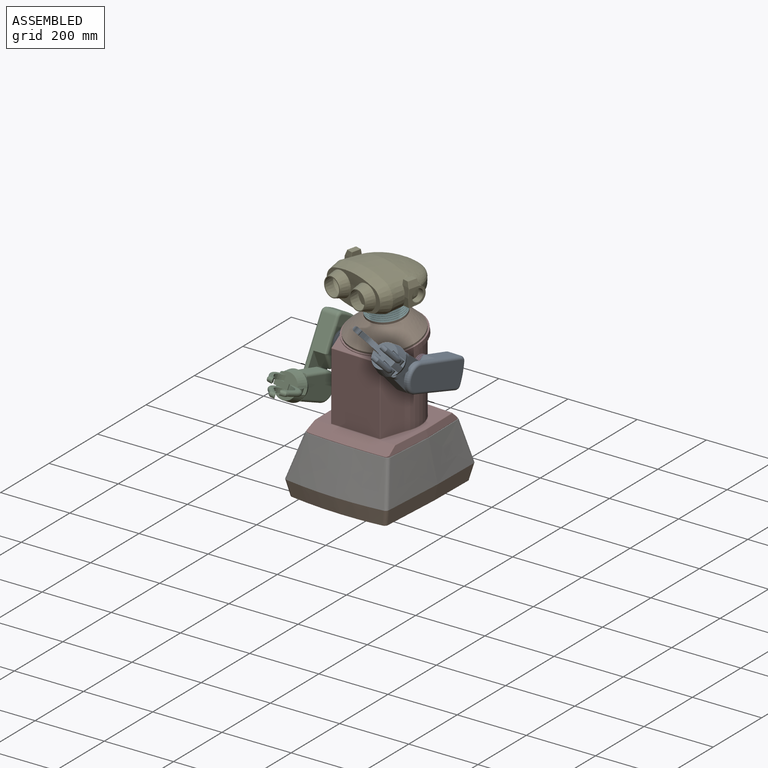
[diagram: assembled view]
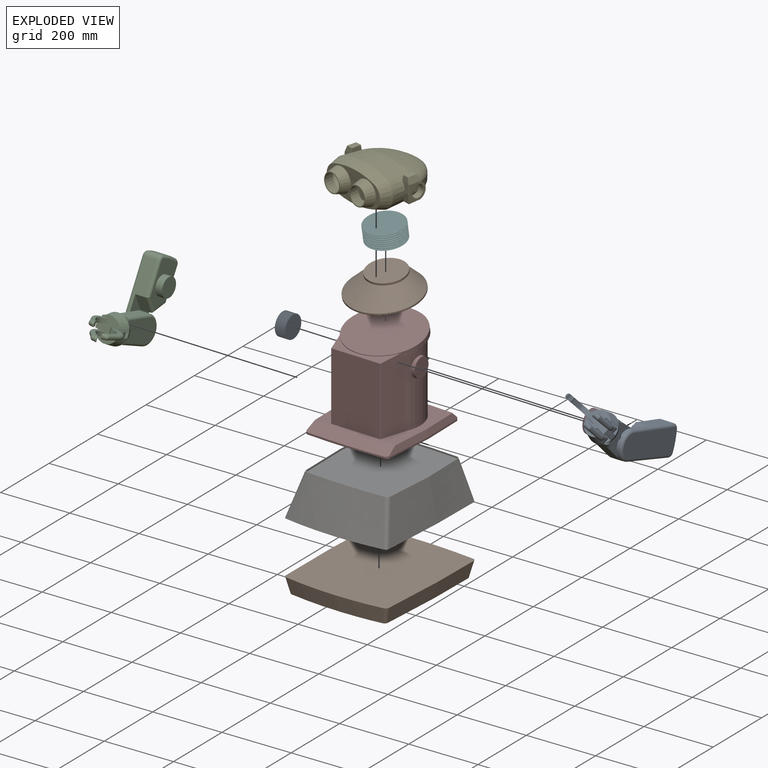
[diagram: exploded view]
GUIDED TOUR — MATED ASSEMBLY WITH SUBASSEMBLIES (Onshape document 103a660172ac3e37fdf2f8b3, AutoMate assembly 103a660172ac3e37fdf2f8b3_768f0f45ffd59bf04294a871_b3bad42c81f9b08c0eccabce_default)

This assembly has 21 component occurrences arranged in 10 top-level units: 7 individual components plus 3 subassemblies (S0, S1, S2). The tour has two levels: first the top level, where each subassembly is treated as one rigid unit; then each subassembly is toured internally in its own section (nesting deeper than one subassembly level is flattened into its subassembly's section).

Components are labeled P0..P20 across the whole record; subassembly units are labeled S0..S2. A mate is a constraint between two units; its type names the relative motion it leaves free:
  FASTENED — locks the two components together rigidly (no relative motion),
  REVOLUTE — leaves rotation about the listed axis free (a hinge).
Axis/direction vectors are unit vectors and 'through' points are millimeter coordinates, both in the assembly's world frame.

TOP-LEVEL MATES (between units; each subassembly's internal mates are listed in its own section)
  1. REVOLUTE "Revolute 1": S0 <-> P13, axis (-0.999, 0.032, 0.000) through (158.72, -116.70, 211.18) mm
  2. FASTENED "Fastened 4": P2 <-> P8, direction (-0.006, -0.174, 0.985) through (48.92, -105.88, 328.69) mm
  3. FASTENED "Fastened 5": P14 <-> S1, direction (-0.999, 0.032, 0.000) through (-81.15, -108.91, 211.18) mm
  4. FASTENED "Fastened 6": P4 <-> S0, direction (0.999, -0.032, 0.000) through (178.71, -117.35, 211.18) mm
  5. FASTENED "Fastened 2": P10 <-> P13, direction (0.000, 0.000, 1.000) through (48.46, -123.05, 29.18) mm
  6. FASTENED "Fastened 3": P13 <-> P2, direction (-0.006, -0.174, 0.985) through (48.73, -111.80, 275.86) mm
  7. REVOLUTE "Revolute 2": P13 <-> S1, axis (-0.999, 0.032, 0.000) through (-61.16, -109.56, 211.18) mm
  8. REVOLUTE "Revolute 3": P8 <-> S2, axis (-0.006, -0.174, 0.985) through (48.68, -113.17, 370.05) mm
  9. FASTENED "Fastened 1": P18 <-> P10, direction (0.000, 0.000, 1.000) through (48.12, -133.45, -80.82) mm

TOP-LEVEL ASSEMBLY ORDER
  1. P13 — the base component [order heuristic]
  2. S1 — core [order heuristic]
  3. S0 — core [order heuristic]
  4. P4 — core [order heuristic]
  5. P14 — core [order heuristic]
  6. P2 [order verified]
  7. P8 [order verified]
  8. S2 [order verified]
  9. P10 [order verified]
  10. P18 [order verified]
Order-tag legend:
  [order verified] — this step's position reverses a verified removal order: the component was checked to insert without passing through the ones already placed.
  [order heuristic] — the first 5 components form the assembly's core: parts whose collision-free extraction could not be verified, listed in mate-graph order.

Of the 21 component occurrences, 8 carry the full construction recipe — the FeatureScript program that regenerates the part's solid from scratch; the rest are supplied as boundary geometry only. Each toured unit is shown spotlighted twice — assembled, then exploded with a leader line back to its socket (green = recipe-attached component, orange = geometry-only, blue = subassembly unit; the rest desaturated gray).
NOTE — document 2 of 3 of this assembly tour. The two overview renders and the header above are repeated from document 1; the component sections below continue where the previous document stopped.
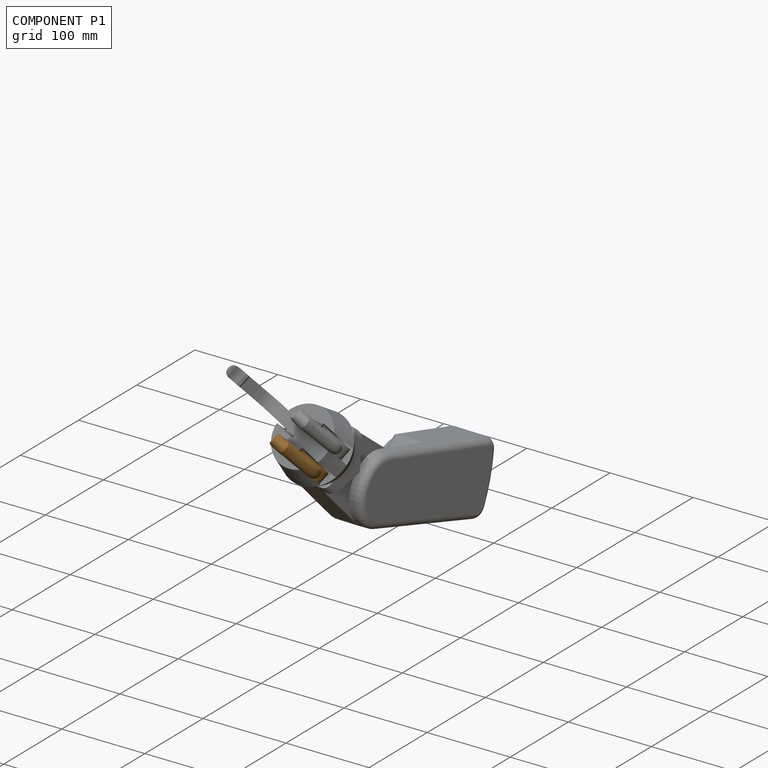
[diagram: component P1 — assembled]
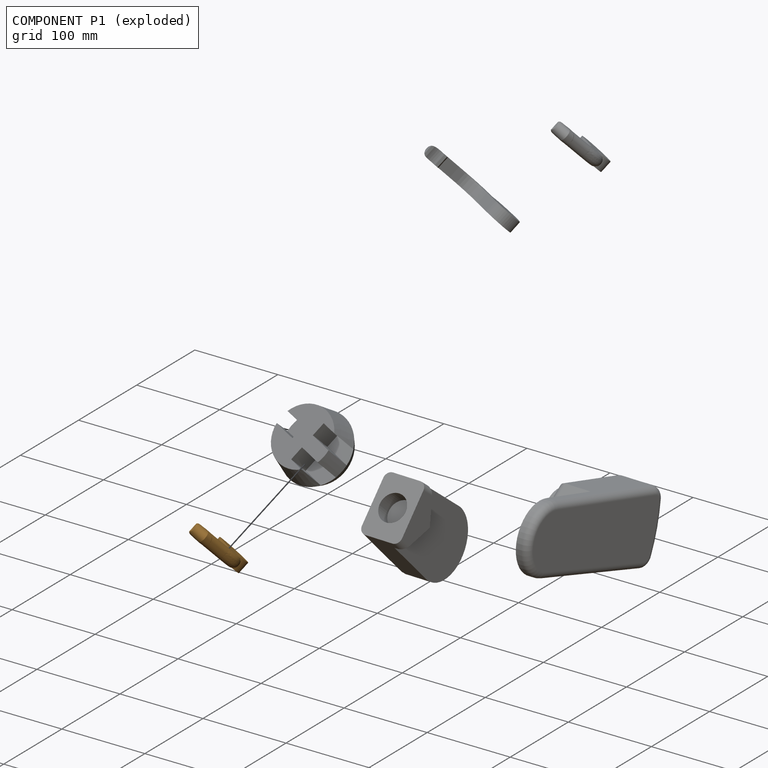
[diagram: component P1 — exploded]
COMPONENT P1 — geometry summary (no construction recipe available for this part):
  bounding box: 101.5 x 85.3 x 14.0 mm
  B-rep topology: 1 solid, 17 faces, 90 edges
  volume: 32064 mm^3 (26% of its bounding box)
  symmetry: mirror-symmetric across its z mid-plane
Held by: REVOLUTE mate "Revolute 2" to P12; REVOLUTE mate "Revolute 2" to P12.
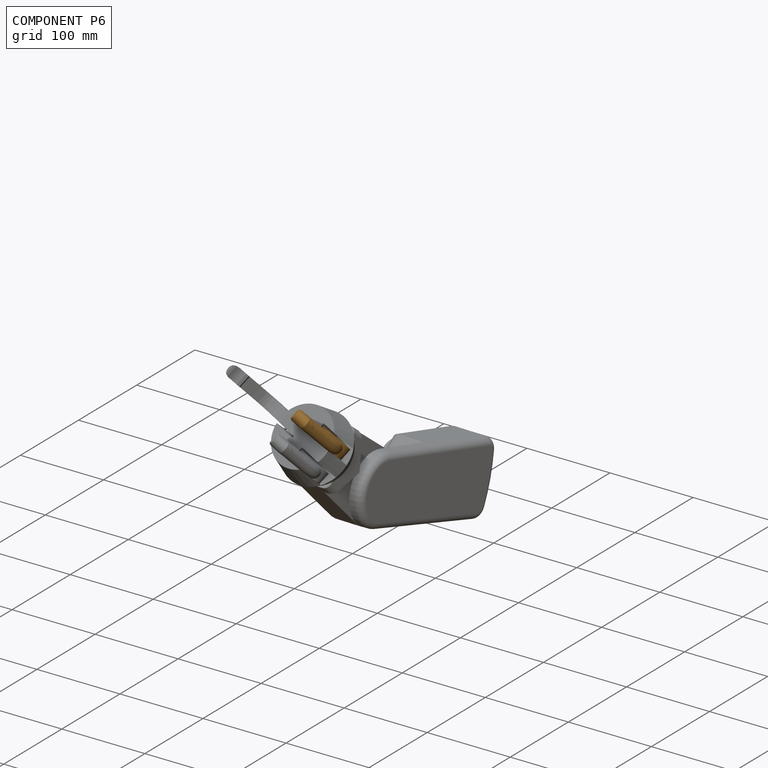
[diagram: component P6 — assembled]
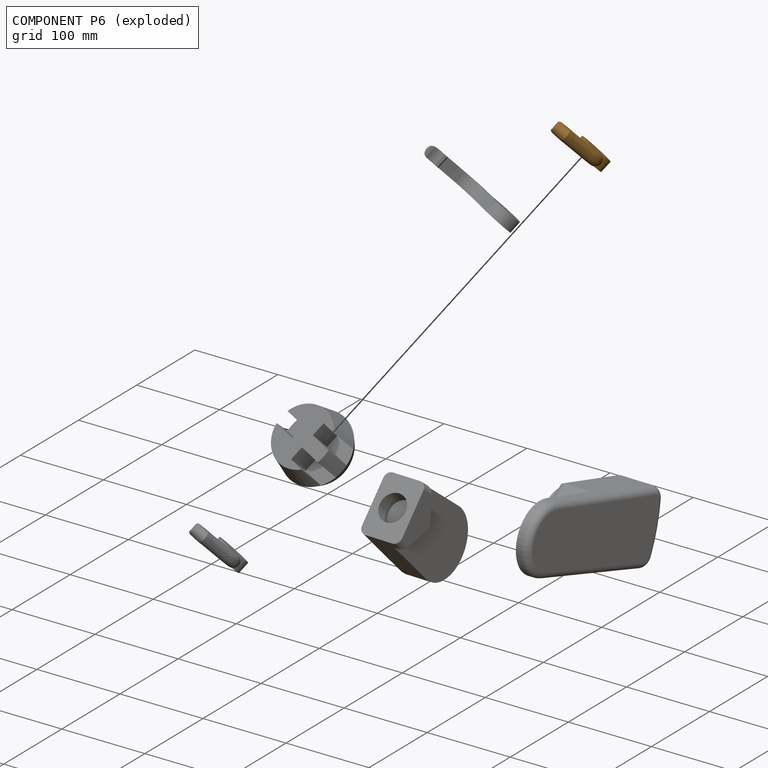
[diagram: component P6 — exploded]
COMPONENT P6 — geometry summary (no construction recipe available for this part):
  bounding box: 101.5 x 85.3 x 14.0 mm
  B-rep topology: 1 solid, 17 faces, 90 edges
  volume: 32064 mm^3 (26% of its bounding box)
  symmetry: mirror-symmetric across its z mid-plane
Held by: REVOLUTE mate "Revolute 3" to P12; REVOLUTE mate "Revolute 3" to P12.
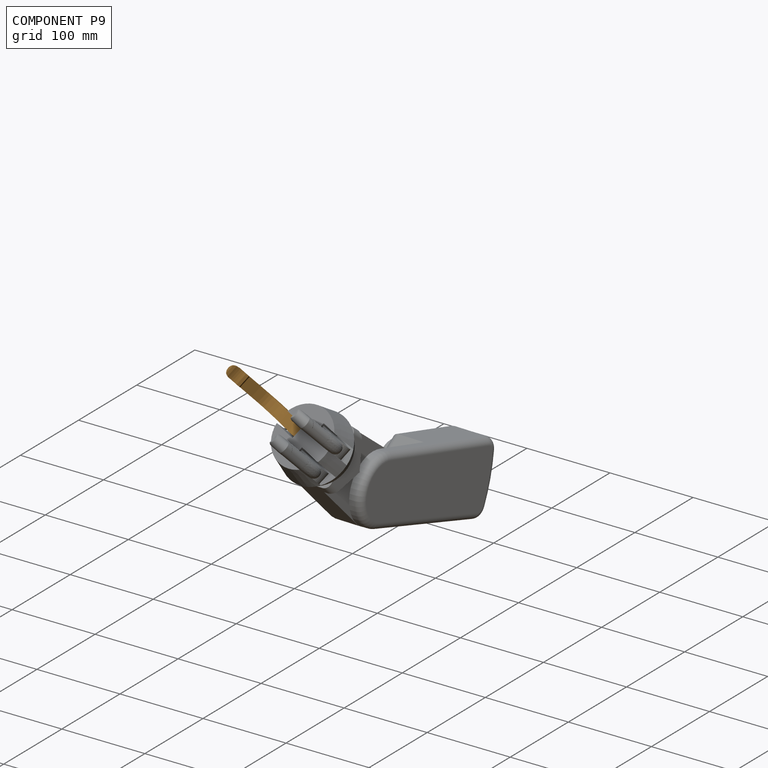
[diagram: component P9 — assembled]
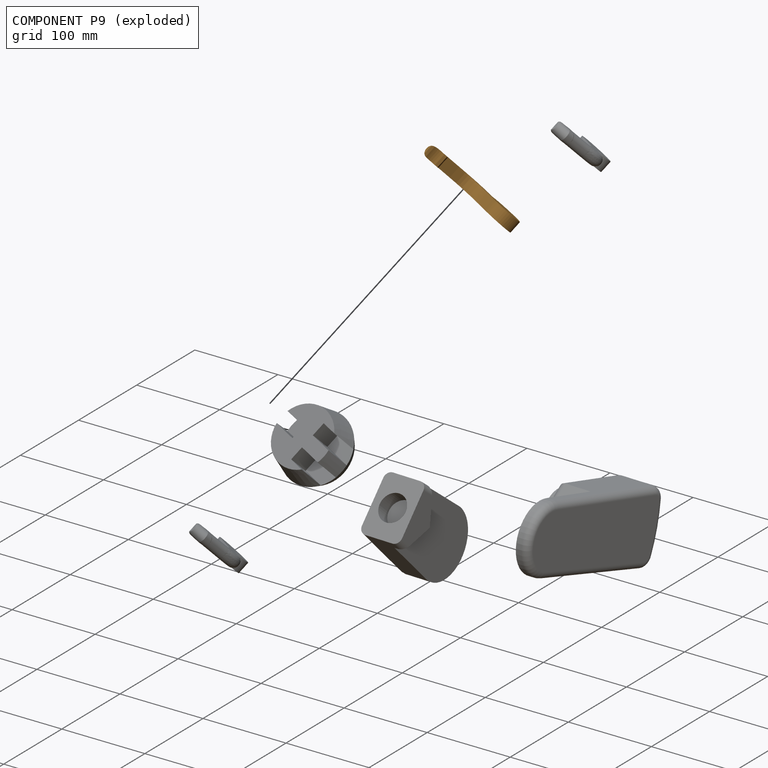
[diagram: component P9 — exploded]
COMPONENT P9 — geometry summary (no construction recipe available for this part):
  bounding box: 101.5 x 85.3 x 14.0 mm
  B-rep topology: 1 solid, 17 faces, 90 edges
  volume: 32064 mm^3 (26% of its bounding box)
  symmetry: mirror-symmetric across its z mid-plane
Held by: REVOLUTE mate "Revolute 1" to P12; REVOLUTE mate "Revolute 1" to P12.
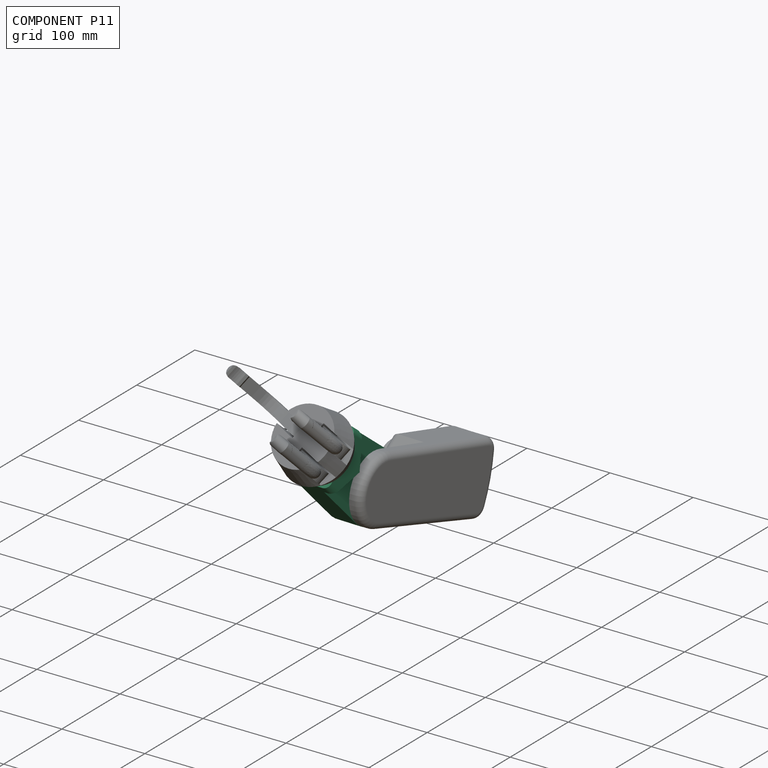
[diagram: component P11 — assembled]
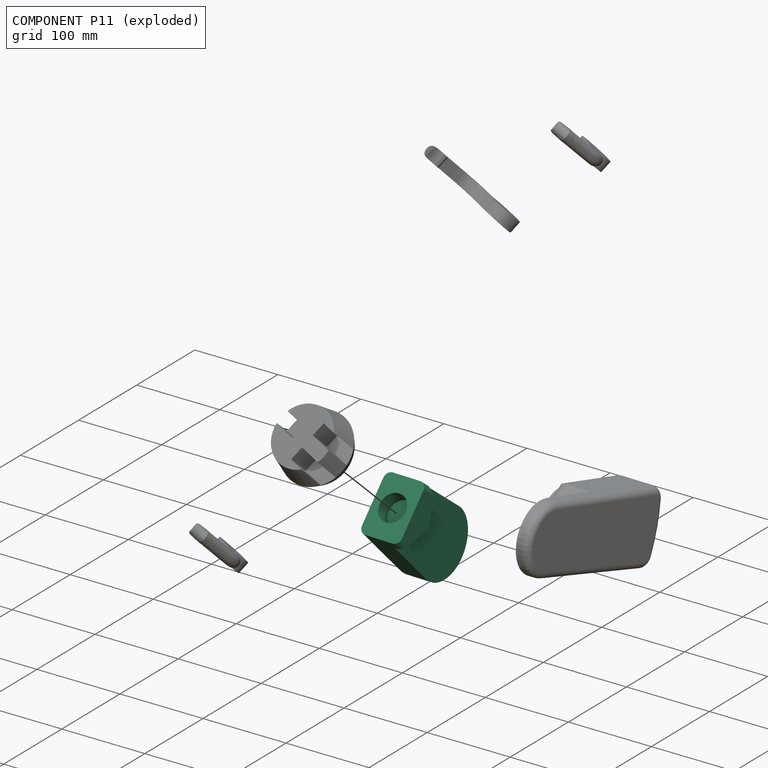
[diagram: component P11 — exploded]
COMPONENT P11 — recipe-attached (CADFS 00932347, mesh-verified: the recipe's output STEP matches this component's geometry to below the mesh-comparison resolution (tessellation chordal tolerance ~0.241 mm)).
Held by: REVOLUTE mate "Revolute 3" to P12; REVOLUTE mate "Revolute 1" to P0; REVOLUTE mate "Revolute 3" to P12; REVOLUTE mate "Revolute 1" to P0.
Construction recipe (FeatureScript — the CAD program that rebuilds this solid; sketch coordinates are in the units given by the * unit suffixes, e.g. mm):

FeatureScript 1511;
import(path : "onshape/std/geometry.fs", version : "1511.0");
import(path : "onshape/std/common.fs", version : "1511.0");
const mm = millimeter;
const VERTEX = EntityType.VERTEX;
const EDGE = EntityType.EDGE;
const FACE = EntityType.FACE;
const BODY = EntityType.BODY;
function v(x, y){return vector(x, y);}
function OD(order){return orderDisambiguation(order);}
function OSD(set){return originalSetDisambiguation(set);}
function TD(topology){return topologyDisambiguation(topology);}
function TDD(query){return trueDependencyDisambiguation(query);}
function sQuery(a, b, c) {return sketchEntityQuery(a, b, c);}

annotation { "Feature Type Name" : "Feature", "Feature Type Description" : "" }
export const myFeature = defineFeature(function(context is Context, id is Id, definition is map)
    precondition{}
    {
        {
            var Q0;
            Q0=qCreatedBy(makeId("Top.planeOp"),FACE);
            var sketch = newSketch(context, id + "F0", { "sketchPlane" : qUnion([Q0])});
            skArc(sketch, "E0", {"start": v(0, 40.25) * mm, "mid": v(-40.25, 0) * mm, "end": v(0, -40.25) * mm});
            skLineSegment(sketch, "E1", {"start": v(0, 40.25) * mm, "end": v(89.5, 34.25) * mm});
            skLineSegment(sketch, "E2", {"start": v(89.5, 34.25) * mm, "end": v(89.5, -34.25) * mm});
            skLineSegment(sketch, "E3", {"start": v(89.5, -34.25) * mm, "end": v(0, -40.25) * mm});
            skPoint(sketch, "E4", {"position": v(89.5, 0) * mm});
            skSolve(sketch);
        }
        {
            var Q0;
            Q0=makeQuery(id+"F0.imprint","IMPRINT",FACE,{"disambiguationData":[TD([[makeQuery(id+"F0.imprint","IMPRINT",EDGE,{"derivedFrom":sQuery(id+"F0.wireOp",EDGE,"E0")}),1.0]])]});
            extrude(context, id + "F1", {"entities" : qUnion([Q0]), "depth" : 49.5 * mm});
        }
        {
            var Q0;
            Q0=makeQuery(id+"F1.opExtrude","CAP_FACE",FACE,{"disambiguationData":[OSD([sQuery(id+"F0.wireOp",EDGE,"E0"),sQuery(id+"F0.wireOp",EDGE,"E1"),sQuery(id+"F0.wireOp",EDGE,"E2"),sQuery(id+"F0.wireOp",EDGE,"E3")])],"isStart":true});
            var sketch = newSketch(context, id + "F2", { "sketchPlane" : qUnion([Q0])});
            skLineSegment(sketch, "E5", {"start": v(76.87, 35.1) * mm, "end": v(52, 0) * mm});
            skLineSegment(sketch, "E6", {"start": v(52, 0) * mm, "end": v(76.87, -35.1) * mm});
            skLineSegment(sketch, "E7", {"start": v(76.87, -35.1) * mm, "end": v(-48.5, -56.11) * mm});
            skLineSegment(sketch, "E8", {"start": v(-48.5, -56.11) * mm, "end": v(-51.9, 53.54) * mm});
            skLineSegment(sketch, "E9", {"start": v(-51.9, 53.54) * mm, "end": v(76.87, 35.1) * mm});
            skSolve(sketch);
        }
        {
            var Q0;
            {var subQ1=sQuery(id+"F2.wireOp",EDGE,"E5");var subQ7=sQuery(id+"F2.wireOp",EDGE,"E7");Q0=qUnion([makeQuery(id+"F2.imprint","IMPRINT",FACE,{"disambiguationData":[TD([[makeQuery(id+"F2.imprint","IMPRINT",EDGE,{"derivedFrom":subQ7}),-1.0]])]}),makeQuery(id+"F2.imprint","IMPRINT",FACE,{"disambiguationData":[TD([[makeQuery(id+"F2.imprint","IMPRINT",EDGE,{"derivedFrom":subQ1}),-1.0]])]})]);}
            extrude(context, id + "F3", {"entities" : qUnion([Q0]), "operationType" : NewBodyOperationType.REMOVE, "oppositeDirection" : true, "depth" : 12 * mm});
        }
        {
            var Q0;
            Q0=makeQuery(id+"F1.opExtrude","CAP_EDGE",EDGE,{"disambiguationData":[OSD([sQuery(id+"F0.wireOp",EDGE,"E1")])],"isStart":false});
            var Q1;
            Q1=makeQuery(id+"F1.opExtrude","CAP_EDGE",EDGE,{"disambiguationData":[OSD([sQuery(id+"F0.wireOp",EDGE,"E0")])],"isStart":false});
            var Q2;
            Q2=makeQuery(id+"F1.opExtrude","CAP_EDGE",EDGE,{"disambiguationData":[OSD([sQuery(id+"F0.wireOp",EDGE,"E3")])],"isStart":false});
            var Q3;
            Q3=makeQuery(id+"F1.opExtrude","CAP_EDGE",EDGE,{"disambiguationData":[OSD([sQuery(id+"F0.wireOp",EDGE,"E1")])],"isStart":true});
            var Q4;
            Q4=makeQuery(id+"F1.opExtrude","CAP_EDGE",EDGE,{"disambiguationData":[OSD([sQuery(id+"F0.wireOp",EDGE,"E3")])],"isStart":true});
            fillet(context, id + "F4", {"entities" : qUnion([Q0, Q1, Q2, Q3, Q4]), "radius" : 8 * mm, "tangentPropagation" : true, "allowEdgeOverflow" : false});
        }
        {
            var Q0;
            Q0=makeQuery(id+"F1.opExtrude","SWEPT_FACE",FACE,{"disambiguationData":[OSD([sQuery(id+"F0.wireOp",EDGE,"E2")])]});
            var sketch = newSketch(context, id + "F5", { "sketchPlane" : qUnion([Q0])});
            skCircle(sketch, "E10", {"center": v(0, 24.75) * mm, "radius": 16 * mm});
            skPoint(sketch, "E11", {"position": v(-34.25, 24.75) * mm});
            skPoint(sketch, "E12", {"position": v(0, 49.5) * mm});
            skSolve(sketch);
        }
        {
            var Q0;
            Q0=makeQuery(id+"F5.imprint","IMPRINT",FACE,{"disambiguationData":[TD([[makeQuery(id+"F5.imprint","IMPRINT",EDGE,{"derivedFrom":sQuery(id+"F5.wireOp",EDGE,"E10")}),1.0]])]});
            extrude(context, id + "F6", {"entities" : qUnion([Q0]), "operationType" : NewBodyOperationType.REMOVE, "oppositeDirection" : true, "depth" : 20 * mm});
        }
    });
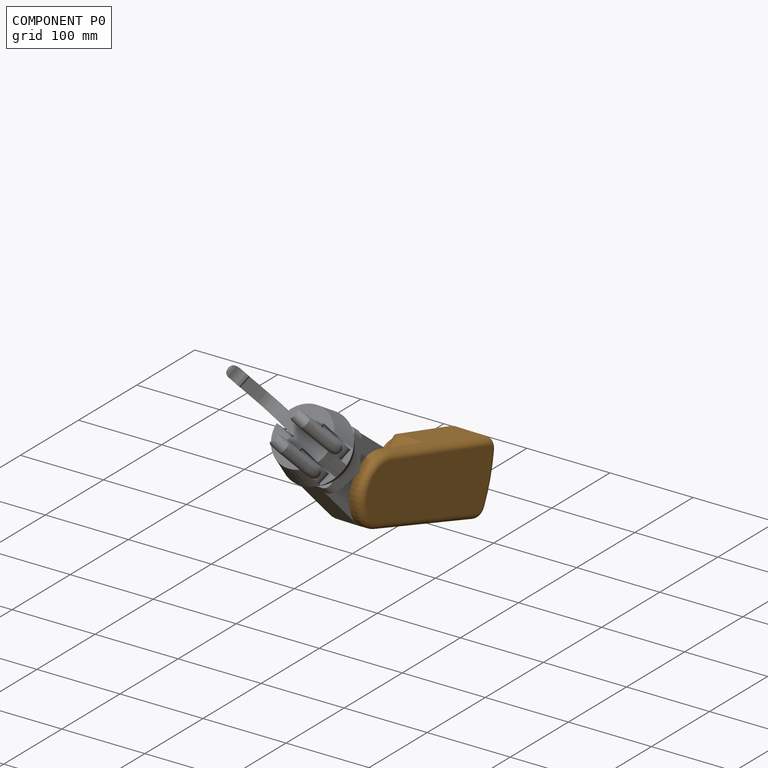
[diagram: component P0 — assembled]
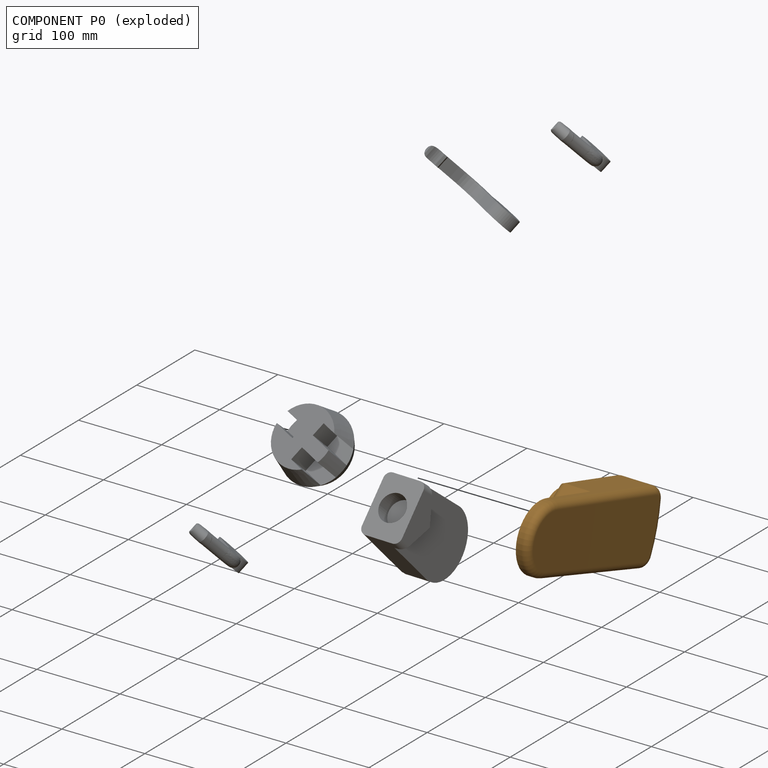
[diagram: component P0 — exploded]
COMPONENT P0 — geometry summary (no construction recipe available for this part):
  bounding box: 230.7 x 86.6 x 74.0 mm
  B-rep topology: 1 solid, 28 faces, 118 edges
  volume: 701508 mm^3 (47% of its bounding box)
  symmetry: mirror-symmetric across its y mid-plane
Held by: REVOLUTE mate "Revolute 1" to P11; REVOLUTE mate "Revolute 1" to P11.
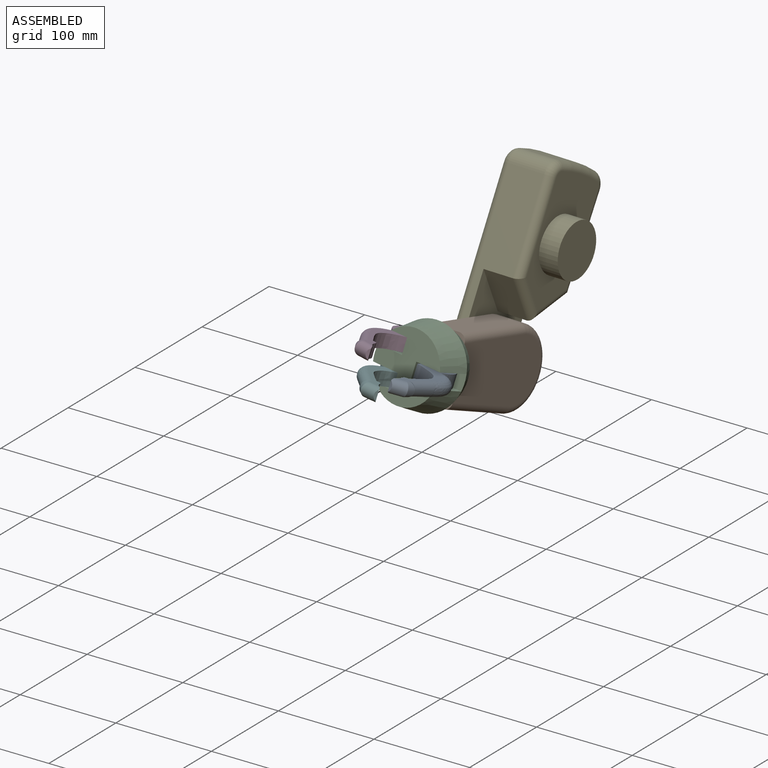
[diagram: subassembly S1 — assembled view]
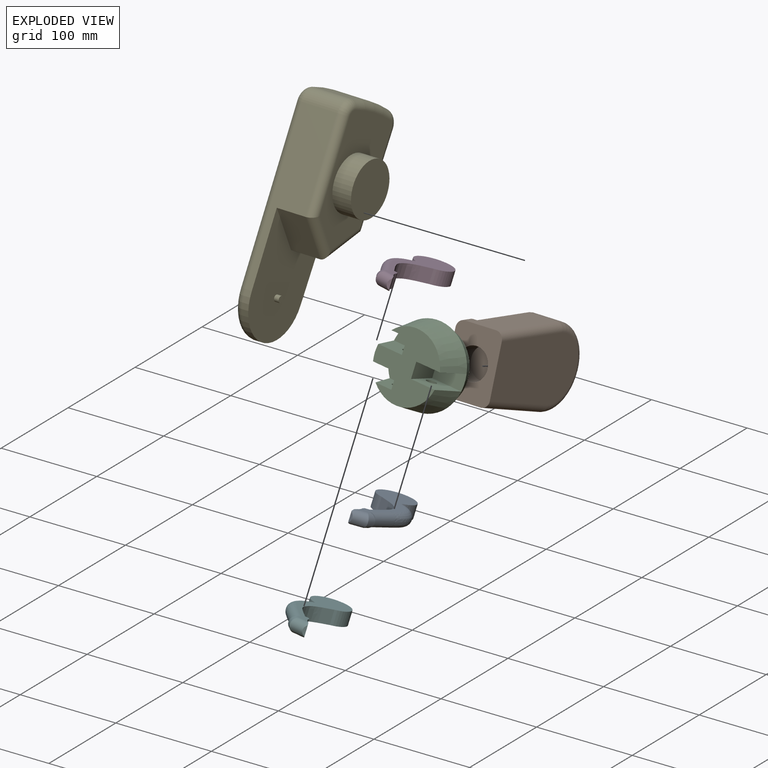
[diagram: subassembly S1 — exploded view]
SUBASSEMBLY S1 TOUR — 6 components, shown here in isolation at its own camera.

INTERNAL MATES
  1. REVOLUTE "Revolute 3": P5 <-> P16, axis (-0.031, -0.945, 0.325) through (-111.94, -248.15, 141.84) mm
  2. REVOLUTE "Revolute 1": P3 <-> P16, axis (-0.121, -0.319, -0.940) through (-97.77, -274.49, 140.43) mm
  3. REVOLUTE "Revolute 2": P17 <-> P16, axis (0.121, 0.319, 0.940) through (-125.63, -262.09, 173.87) mm
  4. REVOLUTE "Revolute 3": P20 <-> P16, axis (0.121, 0.319, 0.940) through (-129.52, -272.30, 143.79) mm
  5. REVOLUTE "Revolute 1": P5 <-> P19, axis (-0.999, 0.032, 0.000) through (-121.93, -163.14, 112.76) mm
  6. REVOLUTE "Revolute 3": P20 <-> P16, axis (0.121, 0.319, 0.940) through (-129.52, -272.30, 143.79) mm
  7. REVOLUTE "Revolute 3": P5 <-> P16, axis (-0.031, -0.945, 0.325) through (-111.94, -248.15, 141.84) mm
  8. REVOLUTE "Revolute 2": P17 <-> P16, axis (0.121, 0.319, 0.940) through (-125.63, -262.09, 173.87) mm
  9. REVOLUTE "Revolute 1": P5 <-> P19, axis (-0.999, 0.032, 0.000) through (-121.93, -163.14, 112.76) mm
  10. REVOLUTE "Revolute 1": P3 <-> P16, axis (-0.121, -0.319, -0.940) through (-97.77, -274.49, 140.43) mm

ASSEMBLY ORDER (within the subassembly)
  1. P16 — the base component [order heuristic]
  2. P3 — core [order heuristic]
  3. P20 — core [order heuristic]
  4. P17 — core [order heuristic]
  5. P5 [order verified]
  6. P19 [order verified]
(P19 verified with a relaxed clearance tolerance: the source model stores slight part interference there.)
Order-tag legend:
  [order verified] — this step's position reverses a verified removal order: the component was checked to insert without passing through the ones already placed.
  [order heuristic] — the first 4 components form the assembly's core: parts whose collision-free extraction could not be verified, listed in mate-graph order.
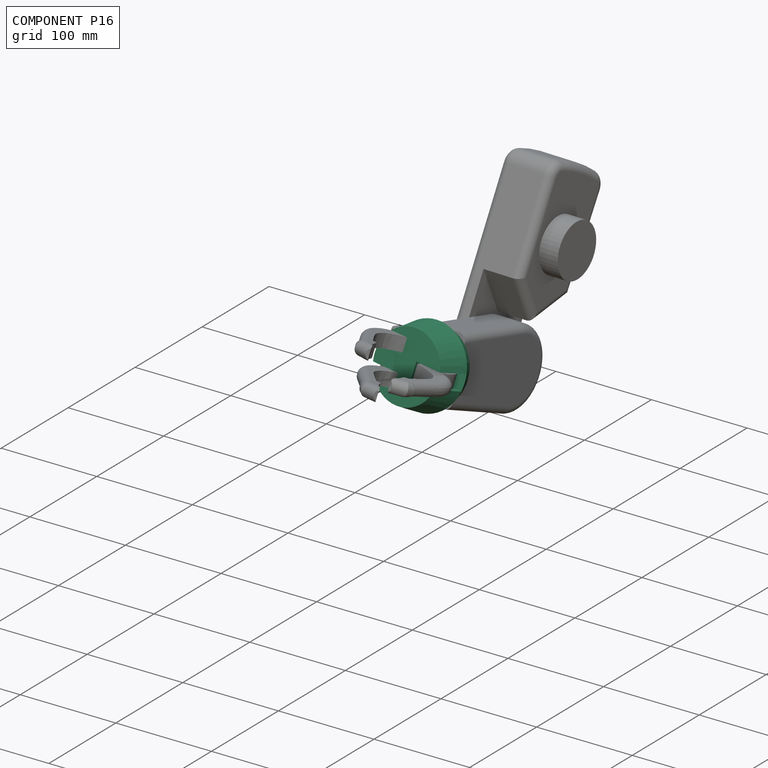
[diagram: component P16 — assembled]
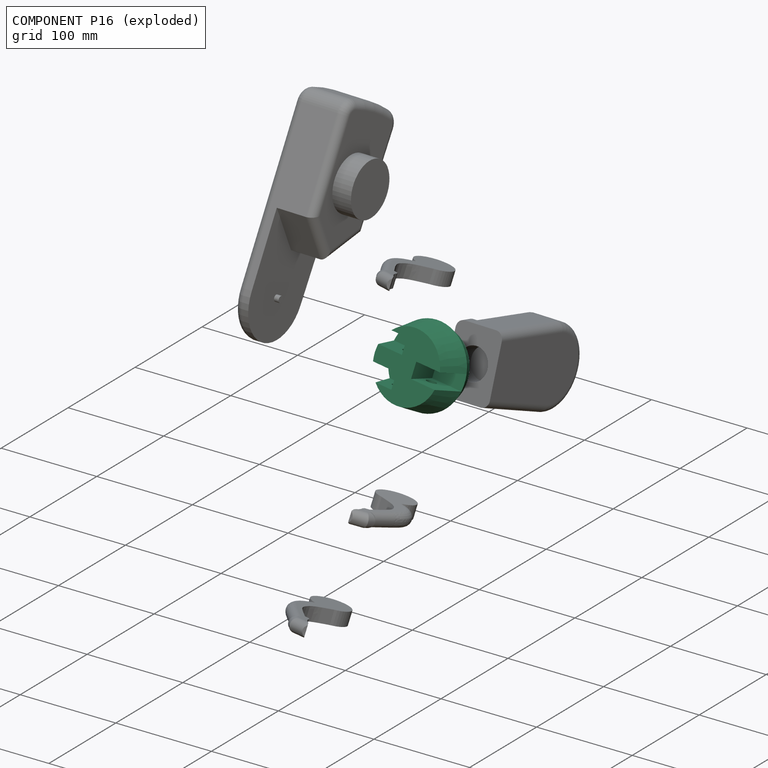
[diagram: component P16 — exploded]
COMPONENT P16 — recipe-attached (CADFS 00590286, mesh-verified: the recipe's output STEP matches this component's geometry to below the mesh-comparison resolution (tessellation chordal tolerance ~0.186 mm)).
Held by: REVOLUTE mate "Revolute 3" to P5; REVOLUTE mate "Revolute 1" to P3; REVOLUTE mate "Revolute 2" to P17; REVOLUTE mate "Revolute 3" to P20; REVOLUTE mate "Revolute 3" to P20; REVOLUTE mate "Revolute 3" to P5; REVOLUTE mate "Revolute 2" to P17; REVOLUTE mate "Revolute 1" to P3.
Construction recipe (FeatureScript — the CAD program that rebuilds this solid; sketch coordinates are in the units given by the * unit suffixes, e.g. mm):

FeatureScript 1511;
import(path : "onshape/std/geometry.fs", version : "1511.0");
import(path : "onshape/std/common.fs", version : "1511.0");
const mm = millimeter;
const VERTEX = EntityType.VERTEX;
const EDGE = EntityType.EDGE;
const FACE = EntityType.FACE;
const BODY = EntityType.BODY;
function v(x, y){return vector(x, y);}
function OD(order){return orderDisambiguation(order);}
function OSD(set){return originalSetDisambiguation(set);}
function TD(topology){return topologyDisambiguation(topology);}
function TDD(query){return trueDependencyDisambiguation(query);}
function sQuery(a, b, c) {return sketchEntityQuery(a, b, c);}

annotation { "Feature Type Name" : "Feature", "Feature Type Description" : "" }
export const myFeature = defineFeature(function(context is Context, id is Id, definition is map)
    precondition{}
    {
        {
            var Q0;
            Q0=qCreatedBy(makeId("Top.planeOp"),FACE);
            var sketch = newSketch(context, id + "F0", { "sketchPlane" : qUnion([Q0])});
            skCircle(sketch, "E0", {"center": v(0, 0) * mm, "radius": 35.5 * mm});
            skSolve(sketch);
        }
        {
            var Q0;
            Q0=qCreatedBy(makeId("Top.planeOp"),FACE);
            cPlane(context, id + "F1", {"entities" : qUnion([Q0]), "cplaneType" : CPlaneType.OFFSET, "offset" : 12 * mm, "width" : 150 * mm, "height" : 150 * mm});
        }
        {
            var Q0;
            Q0=qCreatedBy(id+"F1.planeOp",FACE);
            cPlane(context, id + "F2", {"entities" : qUnion([Q0]), "cplaneType" : CPlaneType.OFFSET, "offset" : 32 * mm, "width" : 150 * mm, "height" : 150 * mm});
        }
        {
            var Q0;
            Q0=qCreatedBy(id+"F1.planeOp",FACE);
            var sketch = newSketch(context, id + "F3", { "sketchPlane" : qUnion([Q0])});
            skCircle(sketch, "E1", {"center": v(0, 0) * mm, "radius": 41 * mm});
            skSolve(sketch);
        }
        {
            var Q0;
            Q0=qCreatedBy(id+"F2.planeOp",FACE);
            var sketch = newSketch(context, id + "F4", { "sketchPlane" : qUnion([Q0])});
            skCircle(sketch, "E2", {"center": v(0, 0) * mm, "radius": 35 * mm});
            skSolve(sketch);
        }
        {
            var Q0;
            Q0=makeQuery(id+"F0.imprint","IMPRINT",FACE,{"disambiguationData":[TD([[makeQuery(id+"F0.imprint","IMPRINT",EDGE,{"derivedFrom":sQuery(id+"F0.wireOp",EDGE,"E0")}),1.0]])]});
            var Q1;
            Q1=makeQuery(id+"F3.imprint","IMPRINT",FACE,{"disambiguationData":[TD([[makeQuery(id+"F3.imprint","IMPRINT",EDGE,{"derivedFrom":sQuery(id+"F3.wireOp",EDGE,"E1")}),1.0]])]});
            loft(context, id + "F5", {"sheetProfilesArray" : [{ "sheetProfileEntities" : qUnion([Q0]) }, { "sheetProfileEntities" : qUnion([Q1]) }]});
        }
        {
            var Q1;
            Q1=makeQuery(id+"F3.imprint","IMPRINT",FACE,{"disambiguationData":[TD([[makeQuery(id+"F3.imprint","IMPRINT",EDGE,{"derivedFrom":sQuery(id+"F3.wireOp",EDGE,"E1")}),1.0]])]});
            var Q2;
            Q2=makeQuery(id+"F4.imprint","IMPRINT",FACE,{"disambiguationData":[TD([[makeQuery(id+"F4.imprint","IMPRINT",EDGE,{"derivedFrom":sQuery(id+"F4.wireOp",EDGE,"E2")}),1.0]])]});
            loft(context, id + "F6", {"operationType" : NewBodyOperationType.ADD, "sheetProfilesArray" : [{ "sheetProfileEntities" : qUnion([Q1]) }, { "sheetProfileEntities" : qUnion([Q2]) }]});
        }
        {
            var Q0;
            Q0=makeQuery(id+"F6.opLoft","CAP_FACE",FACE,{"disambiguationData":[OSD([makeQuery(id+"F4.imprint","IMPRINT",FACE,{"disambiguationData":[TD([[makeQuery(id+"F4.imprint","IMPRINT",EDGE,{"derivedFrom":sQuery(id+"F4.wireOp",EDGE,"E2")}),1.0]])]})])],"isStart":true});
            var sketch = newSketch(context, id + "F7", { "sketchPlane" : qUnion([Q0])});
            skLineSegment(sketch, "E3.bottom", {"start": v(-8, -48) * mm, "end": v(8, -48) * mm});
            skLineSegment(sketch, "E3.top", {"start": v(-8, -8) * mm, "end": v(8, -8) * mm});
            skLineSegment(sketch, "E3.left", {"start": v(-8, -48) * mm, "end": v(-8, -8) * mm});
            skLineSegment(sketch, "E3.right", {"start": v(8, -48) * mm, "end": v(8, -8) * mm});
            skLineSegment(sketch, "E4.bottom", {"start": v(-24, 48) * mm, "end": v(-8, 48) * mm});
            skLineSegment(sketch, "E4.top", {"start": v(-24, 8) * mm, "end": v(-8, 8) * mm});
            skLineSegment(sketch, "E4.left", {"start": v(-24, 48) * mm, "end": v(-24, 8) * mm});
            skLineSegment(sketch, "E4.right", {"start": v(-8, 48) * mm, "end": v(-8, 8) * mm});
            skLineSegment(sketch, "E5.bottom", {"start": v(8, 48) * mm, "end": v(24, 48) * mm});
            skLineSegment(sketch, "E5.top", {"start": v(8, 8) * mm, "end": v(24, 8) * mm});
            skLineSegment(sketch, "E5.left", {"start": v(8, 48) * mm, "end": v(8, 8) * mm});
            skLineSegment(sketch, "E5.right", {"start": v(24, 48) * mm, "end": v(24, 8) * mm});
            skPoint(sketch, "E6", {"position": v(0, -8) * mm});
            skSolve(sketch);
        }
        {
            var Q0;
            {var subQ6=sQuery(id+"F7.wireOp",EDGE,"E3.bottom");var subQ12=sQuery(id+"F7.wireOp",EDGE,"E4.bottom");var subQ18=sQuery(id+"F7.wireOp",EDGE,"E5.bottom");var subQ19=sQuery(id+"F7.wireOp",EDGE,"E3.top");var subQ20=sQuery(id+"F7.wireOp",EDGE,"E4.top");var subQ21=sQuery(id+"F7.wireOp",EDGE,"E5.top");Q0=qUnion([makeQuery(id+"F7.imprint","IMPRINT",FACE,{"disambiguationData":[TD([[makeQuery(id+"F7.imprint","IMPRINT",EDGE,{"derivedFrom":subQ6}),1.0]])]}),makeQuery(id+"F7.imprint","IMPRINT",FACE,{"disambiguationData":[TD([[makeQuery(id+"F7.imprint","IMPRINT",EDGE,{"derivedFrom":subQ12}),-1.0]])]}),makeQuery(id+"F7.imprint","IMPRINT",FACE,{"disambiguationData":[TD([[makeQuery(id+"F7.imprint","IMPRINT",EDGE,{"derivedFrom":subQ18}),-1.0]])]}),makeQuery(id+"F7.imprint","IMPRINT",FACE,{"disambiguationData":[TD([[makeQuery(id+"F7.imprint","IMPRINT",EDGE,{"derivedFrom":subQ19}),-1.0]])]}),makeQuery(id+"F7.imprint","IMPRINT",FACE,{"disambiguationData":[TD([[makeQuery(id+"F7.imprint","IMPRINT",EDGE,{"derivedFrom":subQ20}),1.0]])]}),makeQuery(id+"F7.imprint","IMPRINT",FACE,{"disambiguationData":[TD([[makeQuery(id+"F7.imprint","IMPRINT",EDGE,{"derivedFrom":subQ21}),1.0]])]})]);}
            extrude(context, id + "F8", {"entities" : qUnion([Q0]), "operationType" : NewBodyOperationType.REMOVE, "oppositeDirection" : true, "depth" : 32 * mm});
        }
        {
            var Q0;
            Q0=qCreatedBy(makeId("Right.planeOp"),FACE);
            var sketch = newSketch(context, id + "F9", { "sketchPlane" : qUnion([Q0])});
            skCircle(sketch, "E7", {"center": v(-16, 24) * mm, "radius": 5 * mm});
            skCircle(sketch, "E8", {"center": v(16, 24) * mm, "radius": 5 * mm});
            skSolve(sketch);
        }
        {
            var Q0;
            {Q0=qUnion([makeQuery(id+"F9.imprint","IMPRINT",FACE,{"disambiguationData":[TD([[makeQuery(id+"F9.imprint","IMPRINT",EDGE,{"derivedFrom":sQuery(id+"F9.wireOp",EDGE,"E7")}),1.0]])]}),makeQuery(id+"F9.imprint","IMPRINT",FACE,{"disambiguationData":[TD([[makeQuery(id+"F9.imprint","IMPRINT",EDGE,{"derivedFrom":sQuery(id+"F9.wireOp",EDGE,"E8")}),1.0]])]})]);}
            extrude(context, id + "F10", {"entities" : qUnion([Q0]), "operationType" : NewBodyOperationType.REMOVE, "oppositeDirection" : true, "depth" : 25 * mm});
        }
        {
            var Q0;
            {Q0=qUnion([makeQuery(id+"F9.imprint","IMPRINT",FACE,{"disambiguationData":[TD([[makeQuery(id+"F9.imprint","IMPRINT",EDGE,{"derivedFrom":sQuery(id+"F9.wireOp",EDGE,"E7")}),1.0]])]}),makeQuery(id+"F9.imprint","IMPRINT",FACE,{"disambiguationData":[TD([[makeQuery(id+"F9.imprint","IMPRINT",EDGE,{"derivedFrom":sQuery(id+"F9.wireOp",EDGE,"E8")}),1.0]])]})]);}
            extrude(context, id + "F11", {"entities" : qUnion([Q0]), "operationType" : NewBodyOperationType.REMOVE, "depth" : 25 * mm});
        }
    });
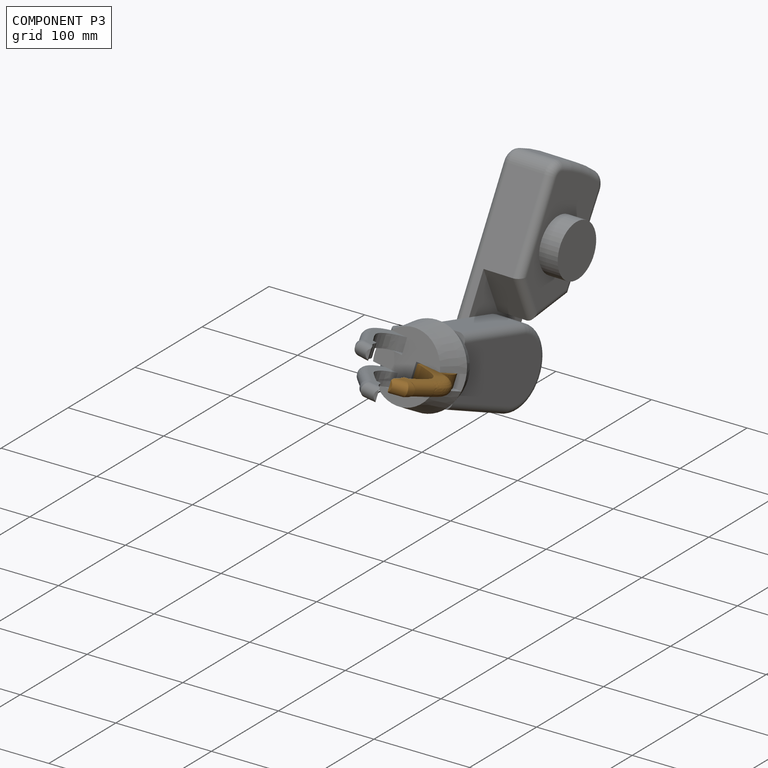
[diagram: component P3 — assembled]
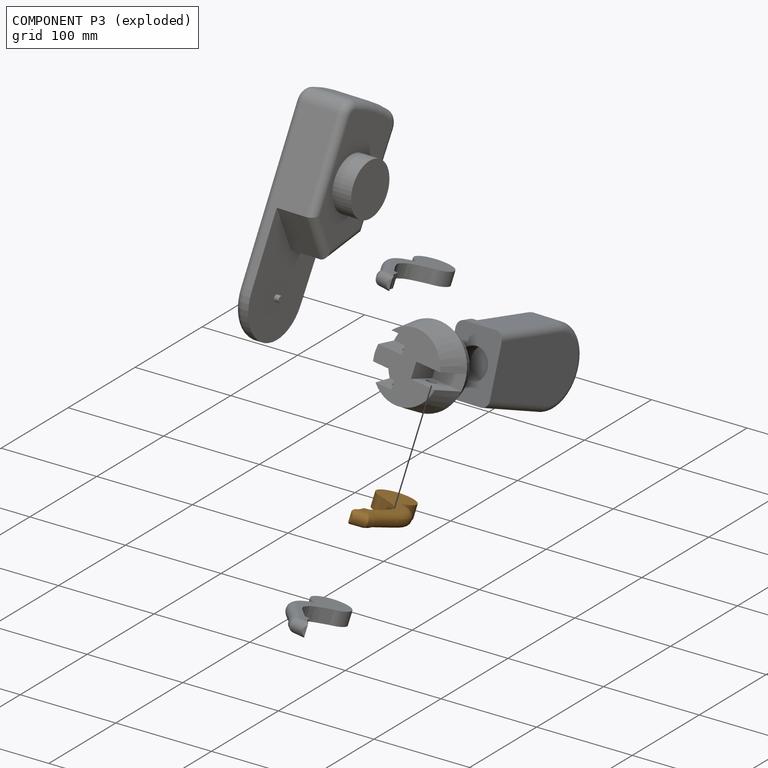
[diagram: component P3 — exploded]
COMPONENT P3 — geometry summary (no construction recipe available for this part):
  bounding box: 101.5 x 85.3 x 14.0 mm
  B-rep topology: 1 solid, 17 faces, 90 edges
  volume: 32064 mm^3 (26% of its bounding box)
  symmetry: mirror-symmetric across its z mid-plane
Held by: REVOLUTE mate "Revolute 1" to P16; REVOLUTE mate "Revolute 1" to P16.
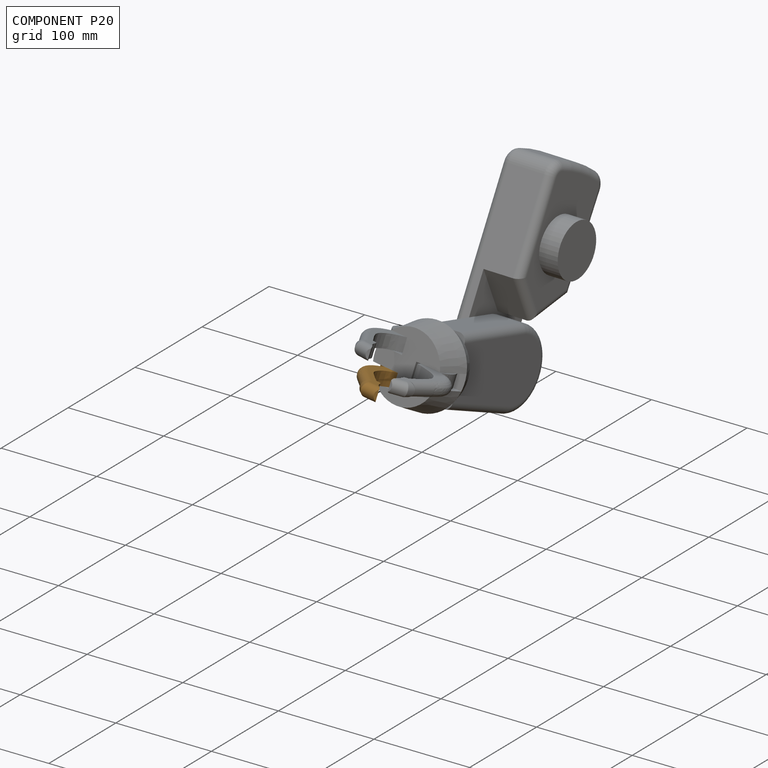
[diagram: component P20 — assembled]
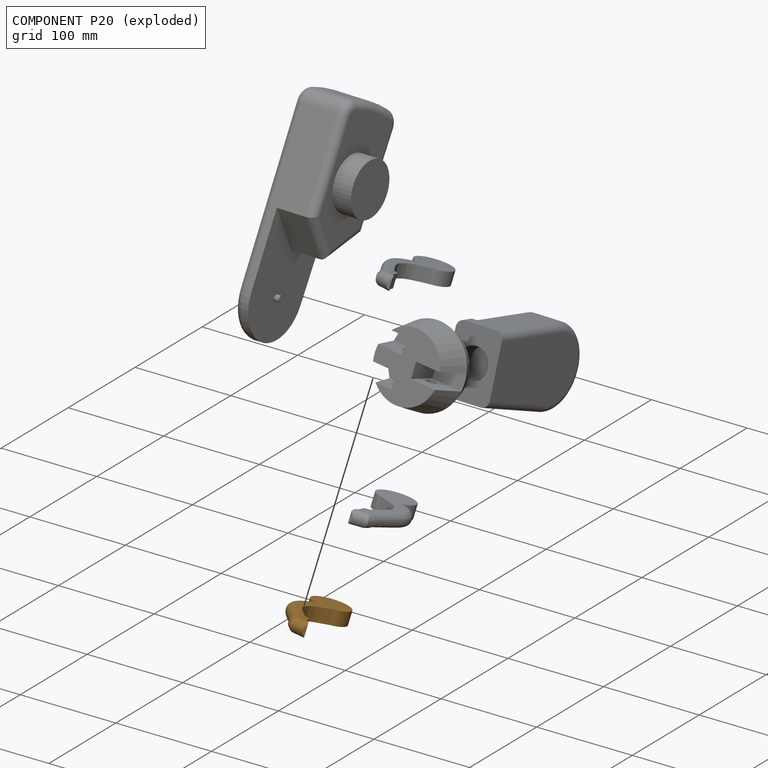
[diagram: component P20 — exploded]
COMPONENT P20 — geometry summary (no construction recipe available for this part):
  bounding box: 101.5 x 85.3 x 14.0 mm
  B-rep topology: 1 solid, 17 faces, 90 edges
  volume: 32064 mm^3 (26% of its bounding box)
  symmetry: mirror-symmetric across its z mid-plane
Held by: REVOLUTE mate "Revolute 3" to P16; REVOLUTE mate "Revolute 3" to P16.
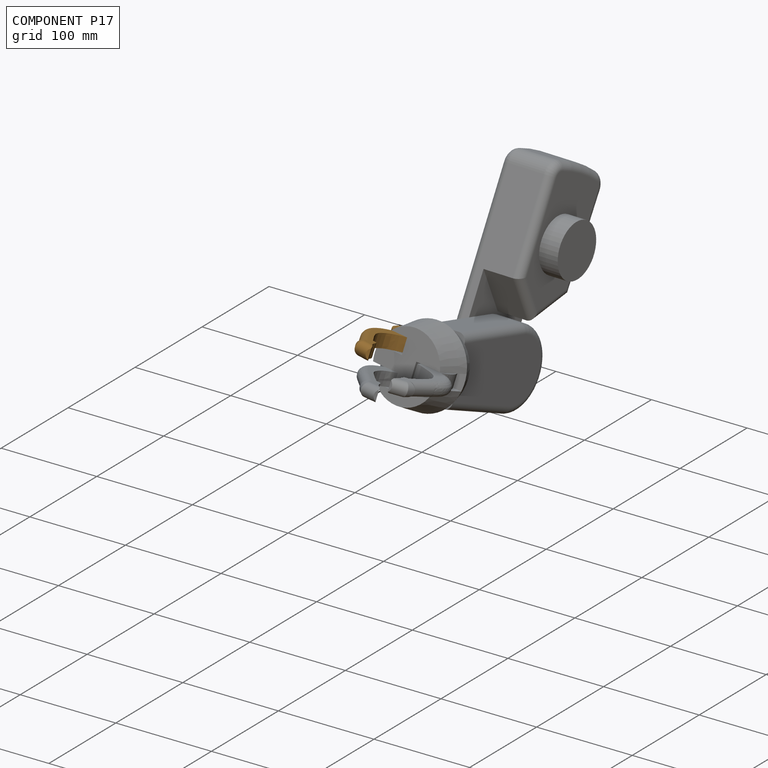
[diagram: component P17 — assembled]
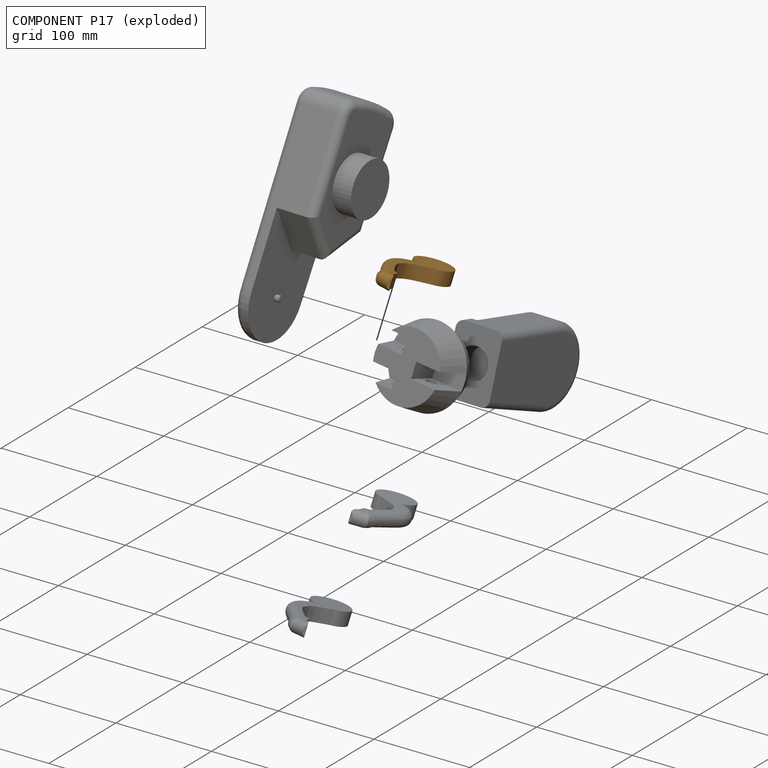
[diagram: component P17 — exploded]
COMPONENT P17 — geometry summary (no construction recipe available for this part):
  bounding box: 101.5 x 85.3 x 14.0 mm
  B-rep topology: 1 solid, 17 faces, 90 edges
  volume: 32064 mm^3 (26% of its bounding box)
  symmetry: mirror-symmetric across its z mid-plane
Held by: REVOLUTE mate "Revolute 2" to P16; REVOLUTE mate "Revolute 2" to P16.
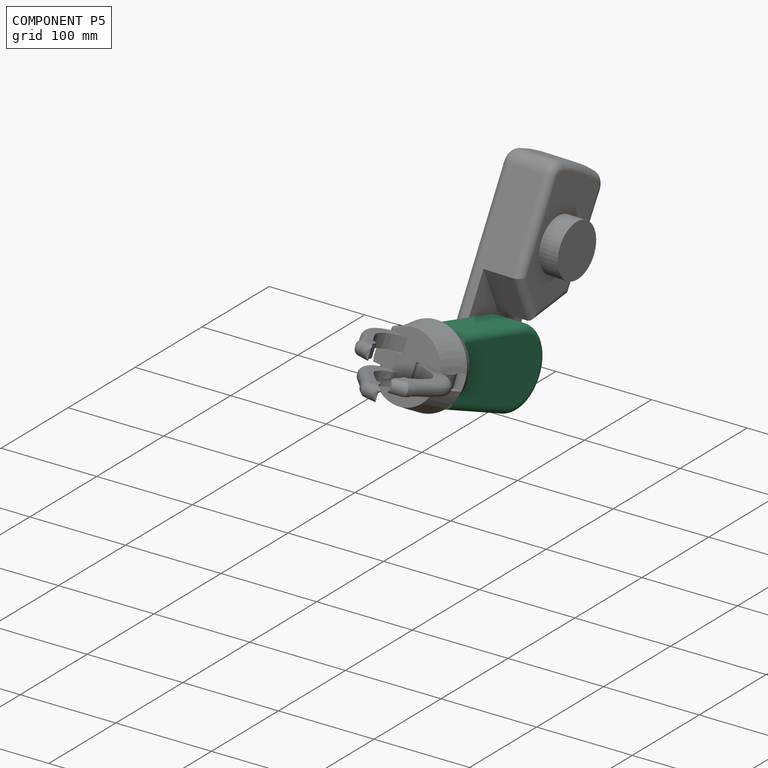
[diagram: component P5 — assembled]
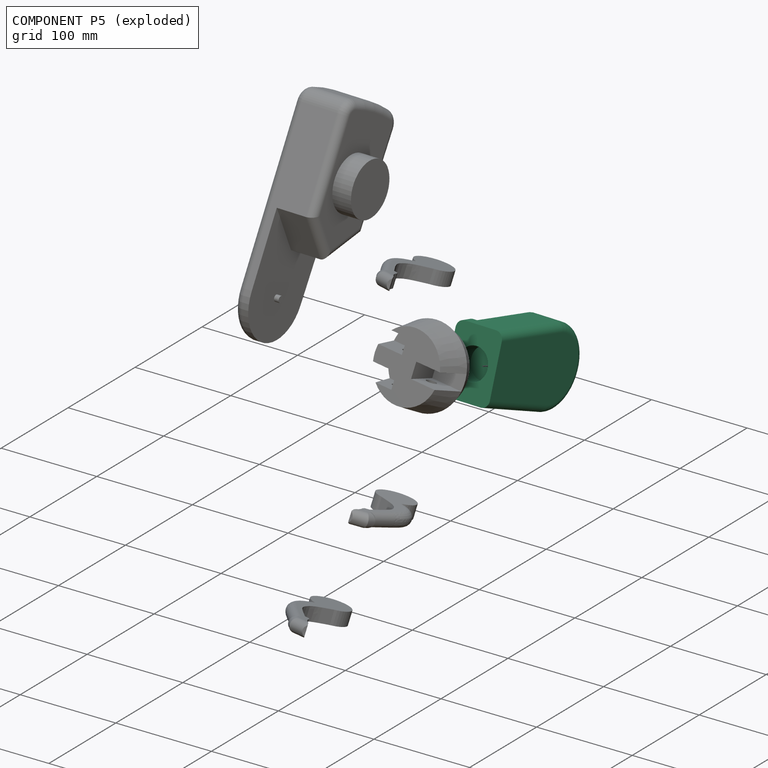
[diagram: component P5 — exploded]
COMPONENT P5 — recipe-attached (CADFS 00932347, mesh-verified: the recipe's output STEP matches this component's geometry to below the mesh-comparison resolution (tessellation chordal tolerance ~0.241 mm)).
Held by: REVOLUTE mate "Revolute 3" to P16; REVOLUTE mate "Revolute 1" to P19; REVOLUTE mate "Revolute 3" to P16; REVOLUTE mate "Revolute 1" to P19.
Construction recipe (FeatureScript — the CAD program that rebuilds this solid; sketch coordinates are in the units given by the * unit suffixes, e.g. mm):

FeatureScript 1511;
import(path : "onshape/std/geometry.fs", version : "1511.0");
import(path : "onshape/std/common.fs", version : "1511.0");
const mm = millimeter;
const VERTEX = EntityType.VERTEX;
const EDGE = EntityType.EDGE;
const FACE = EntityType.FACE;
const BODY = EntityType.BODY;
function v(x, y){return vector(x, y);}
function OD(order){return orderDisambiguation(order);}
function OSD(set){return originalSetDisambiguation(set);}
function TD(topology){return topologyDisambiguation(topology);}
function TDD(query){return trueDependencyDisambiguation(query);}
function sQuery(a, b, c) {return sketchEntityQuery(a, b, c);}

annotation { "Feature Type Name" : "Feature", "Feature Type Description" : "" }
export const myFeature = defineFeature(function(context is Context, id is Id, definition is map)
    precondition{}
    {
        {
            var Q0;
            Q0=qCreatedBy(makeId("Top.planeOp"),FACE);
            var sketch = newSketch(context, id + "F0", { "sketchPlane" : qUnion([Q0])});
            skArc(sketch, "E0", {"start": v(0, 40.25) * mm, "mid": v(-40.25, 0) * mm, "end": v(0, -40.25) * mm});
            skLineSegment(sketch, "E1", {"start": v(0, 40.25) * mm, "end": v(89.5, 34.25) * mm});
            skLineSegment(sketch, "E2", {"start": v(89.5, 34.25) * mm, "end": v(89.5, -34.25) * mm});
            skLineSegment(sketch, "E3", {"start": v(89.5, -34.25) * mm, "end": v(0, -40.25) * mm});
            skPoint(sketch, "E4", {"position": v(89.5, 0) * mm});
            skSolve(sketch);
        }
        {
            var Q0;
            Q0=makeQuery(id+"F0.imprint","IMPRINT",FACE,{"disambiguationData":[TD([[makeQuery(id+"F0.imprint","IMPRINT",EDGE,{"derivedFrom":sQuery(id+"F0.wireOp",EDGE,"E0")}),1.0]])]});
            extrude(context, id + "F1", {"entities" : qUnion([Q0]), "depth" : 49.5 * mm});
        }
        {
            var Q0;
            Q0=makeQuery(id+"F1.opExtrude","CAP_FACE",FACE,{"disambiguationData":[OSD([sQuery(id+"F0.wireOp",EDGE,"E0"),sQuery(id+"F0.wireOp",EDGE,"E1"),sQuery(id+"F0.wireOp",EDGE,"E2"),sQuery(id+"F0.wireOp",EDGE,"E3")])],"isStart":true});
            var sketch = newSketch(context, id + "F2", { "sketchPlane" : qUnion([Q0])});
            skLineSegment(sketch, "E5", {"start": v(76.87, 35.1) * mm, "end": v(52, 0) * mm});
            skLineSegment(sketch, "E6", {"start": v(52, 0) * mm, "end": v(76.87, -35.1) * mm});
            skLineSegment(sketch, "E7", {"start": v(76.87, -35.1) * mm, "end": v(-48.5, -56.11) * mm});
            skLineSegment(sketch, "E8", {"start": v(-48.5, -56.11) * mm, "end": v(-51.9, 53.54) * mm});
            skLineSegment(sketch, "E9", {"start": v(-51.9, 53.54) * mm, "end": v(76.87, 35.1) * mm});
            skSolve(sketch);
        }
        {
            var Q0;
            {var subQ1=sQuery(id+"F2.wireOp",EDGE,"E5");var subQ7=sQuery(id+"F2.wireOp",EDGE,"E7");Q0=qUnion([makeQuery(id+"F2.imprint","IMPRINT",FACE,{"disambiguationData":[TD([[makeQuery(id+"F2.imprint","IMPRINT",EDGE,{"derivedFrom":subQ7}),-1.0]])]}),makeQuery(id+"F2.imprint","IMPRINT",FACE,{"disambiguationData":[TD([[makeQuery(id+"F2.imprint","IMPRINT",EDGE,{"derivedFrom":subQ1}),-1.0]])]})]);}
            extrude(context, id + "F3", {"entities" : qUnion([Q0]), "operationType" : NewBodyOperationType.REMOVE, "oppositeDirection" : true, "depth" : 12 * mm});
        }
        {
            var Q0;
            Q0=makeQuery(id+"F1.opExtrude","CAP_EDGE",EDGE,{"disambiguationData":[OSD([sQuery(id+"F0.wireOp",EDGE,"E1")])],"isStart":false});
            var Q1;
            Q1=makeQuery(id+"F1.opExtrude","CAP_EDGE",EDGE,{"disambiguationData":[OSD([sQuery(id+"F0.wireOp",EDGE,"E0")])],"isStart":false});
            var Q2;
            Q2=makeQuery(id+"F1.opExtrude","CAP_EDGE",EDGE,{"disambiguationData":[OSD([sQuery(id+"F0.wireOp",EDGE,"E3")])],"isStart":false});
            var Q3;
            Q3=makeQuery(id+"F1.opExtrude","CAP_EDGE",EDGE,{"disambiguationData":[OSD([sQuery(id+"F0.wireOp",EDGE,"E1")])],"isStart":true});
            var Q4;
            Q4=makeQuery(id+"F1.opExtrude","CAP_EDGE",EDGE,{"disambiguationData":[OSD([sQuery(id+"F0.wireOp",EDGE,"E3")])],"isStart":true});
            fillet(context, id + "F4", {"entities" : qUnion([Q0, Q1, Q2, Q3, Q4]), "radius" : 8 * mm, "tangentPropagation" : true, "allowEdgeOverflow" : false});
        }
        {
            var Q0;
            Q0=makeQuery(id+"F1.opExtrude","SWEPT_FACE",FACE,{"disambiguationData":[OSD([sQuery(id+"F0.wireOp",EDGE,"E2")])]});
            var sketch = newSketch(context, id + "F5", { "sketchPlane" : qUnion([Q0])});
            skCircle(sketch, "E10", {"center": v(0, 24.75) * mm, "radius": 16 * mm});
            skPoint(sketch, "E11", {"position": v(-34.25, 24.75) * mm});
            skPoint(sketch, "E12", {"position": v(0, 49.5) * mm});
            skSolve(sketch);
        }
        {
            var Q0;
            Q0=makeQuery(id+"F5.imprint","IMPRINT",FACE,{"disambiguationData":[TD([[makeQuery(id+"F5.imprint","IMPRINT",EDGE,{"derivedFrom":sQuery(id+"F5.wireOp",EDGE,"E10")}),1.0]])]});
            extrude(context, id + "F6", {"entities" : qUnion([Q0]), "operationType" : NewBodyOperationType.REMOVE, "oppositeDirection" : true, "depth" : 20 * mm});
        }
    });
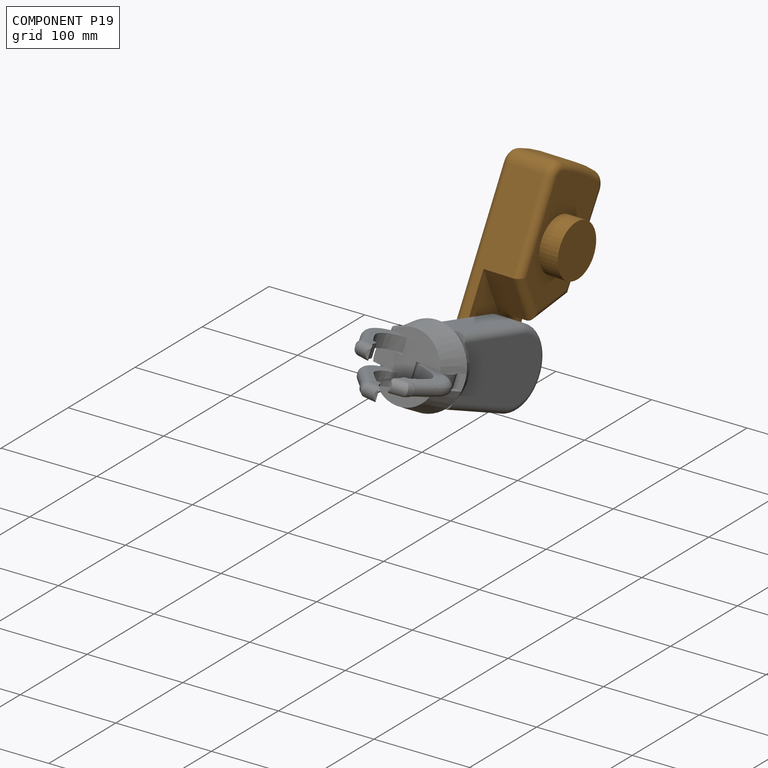
[diagram: component P19 — assembled]
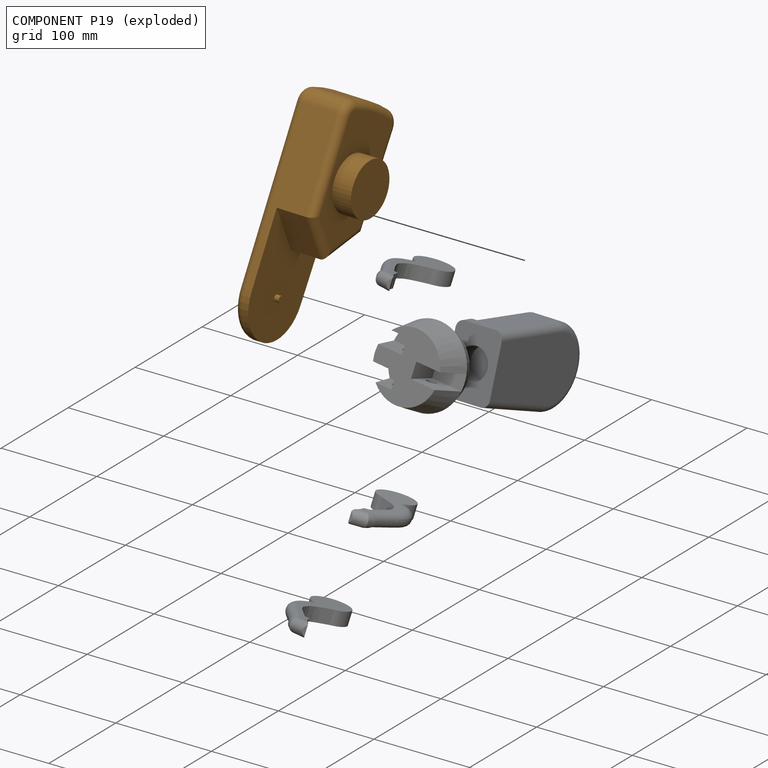
[diagram: component P19 — exploded]
COMPONENT P19 — geometry summary (no construction recipe available for this part):
  bounding box: 230.7 x 86.6 x 74.0 mm
  B-rep topology: 1 solid, 28 faces, 118 edges
  volume: 701508 mm^3 (47% of its bounding box)
  symmetry: mirror-symmetric across its y mid-plane
Held by: REVOLUTE mate "Revolute 1" to P5; REVOLUTE mate "Revolute 1" to P5.
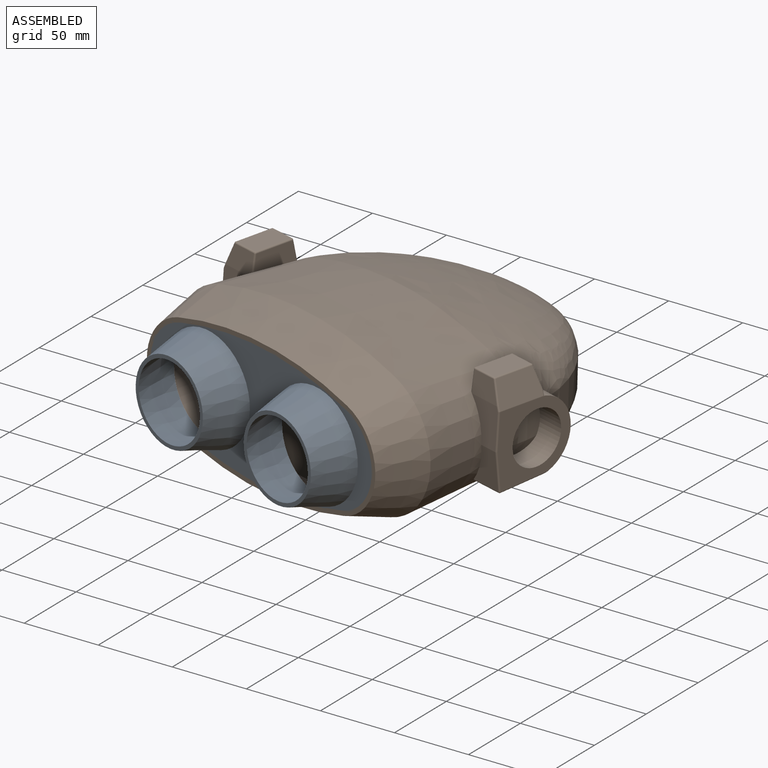
[diagram: subassembly S2 — assembled view]
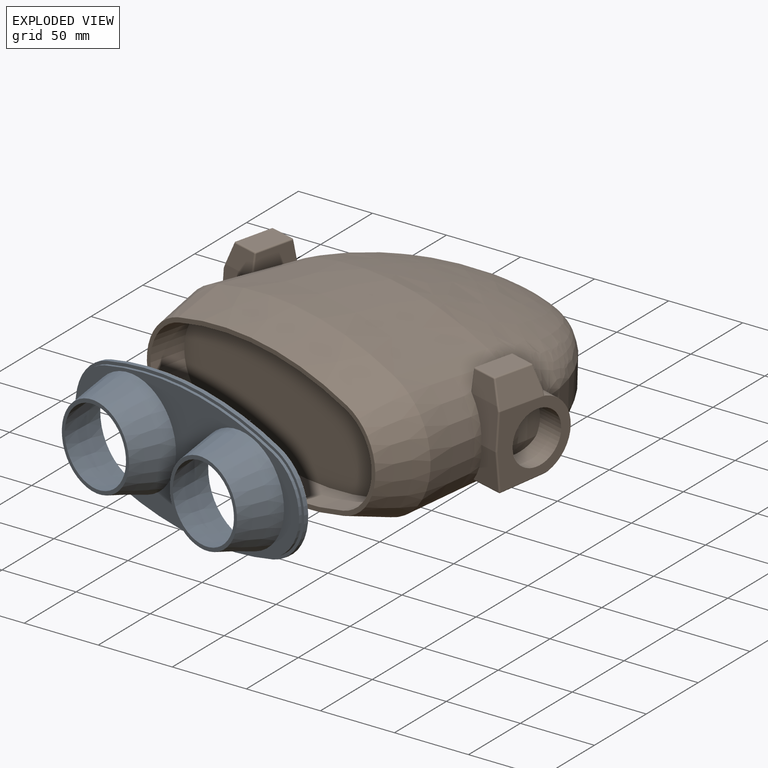
[diagram: subassembly S2 — exploded view]
SUBASSEMBLY S2 TOUR — 2 components, shown here in isolation at its own camera.

INTERNAL MATES
  1. FASTENED "Fastened 1": P15 <-> P7, direction (-0.232, -0.973, 0.004) through (27.10, -210.27, 412.94) mm
  2. FASTENED "Fastened 1": P15 <-> P7, direction (-0.232, -0.973, 0.004) through (27.10, -210.27, 412.94) mm

ASSEMBLY ORDER (within the subassembly)
  1. P15 — the base component [order verified]
  2. P7 [order verified]
(P7 verified with a relaxed clearance tolerance: the source model stores slight part interference there.)
Order-tag legend:
  [order verified] — this step's position reverses a verified removal order: the component was checked to insert without passing through the ones already placed.
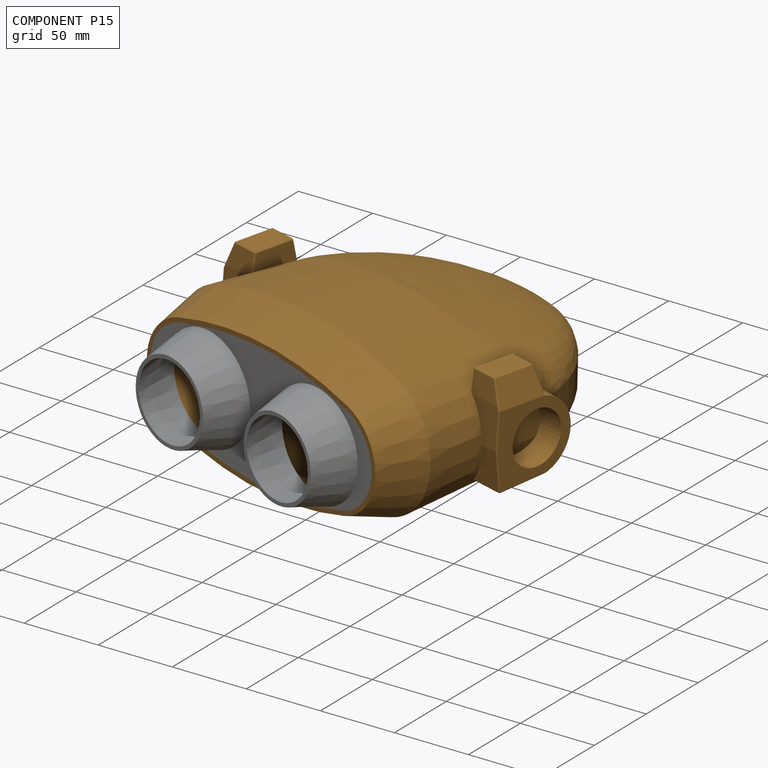
[diagram: component P15 — assembled]
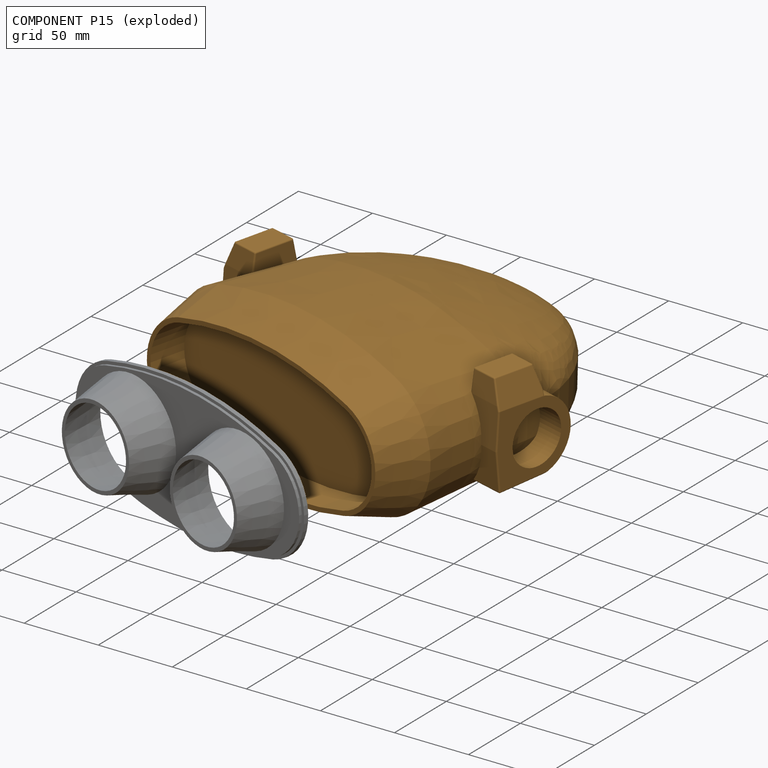
[diagram: component P15 — exploded]
COMPONENT P15 — geometry summary (no construction recipe available for this part):
  bounding box: 230.1 x 201.1 x 110.2 mm
  B-rep topology: 1 solid, 117 faces, 564 edges
  volume: 2494175 mm^3 (49% of its bounding box)
  symmetry: mirror-symmetric across its x mid-plane
Held by: FASTENED mate "Fastened 1" to P7; FASTENED mate "Fastened 1" to P7.
